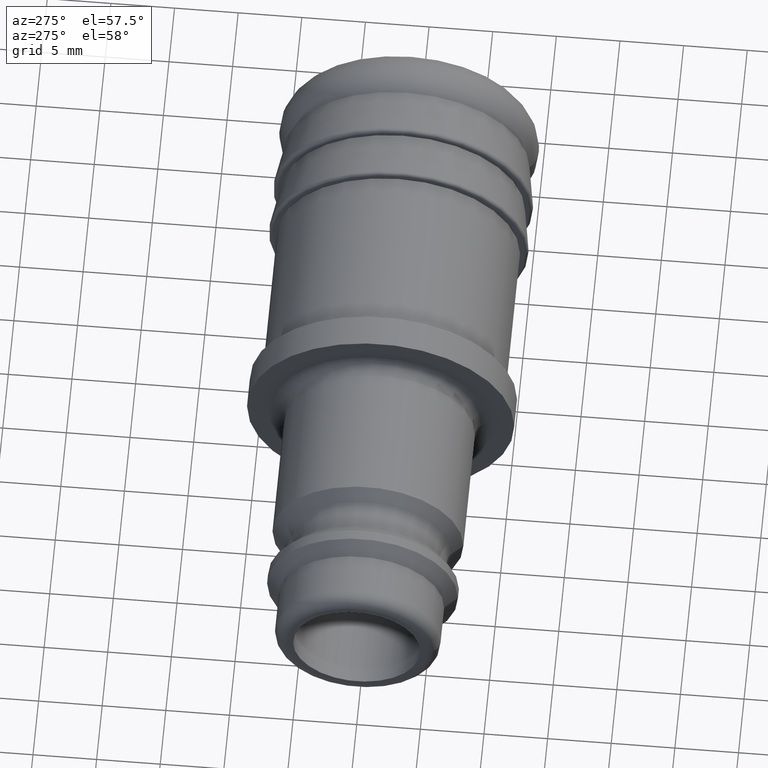
[diagram: clean part render]
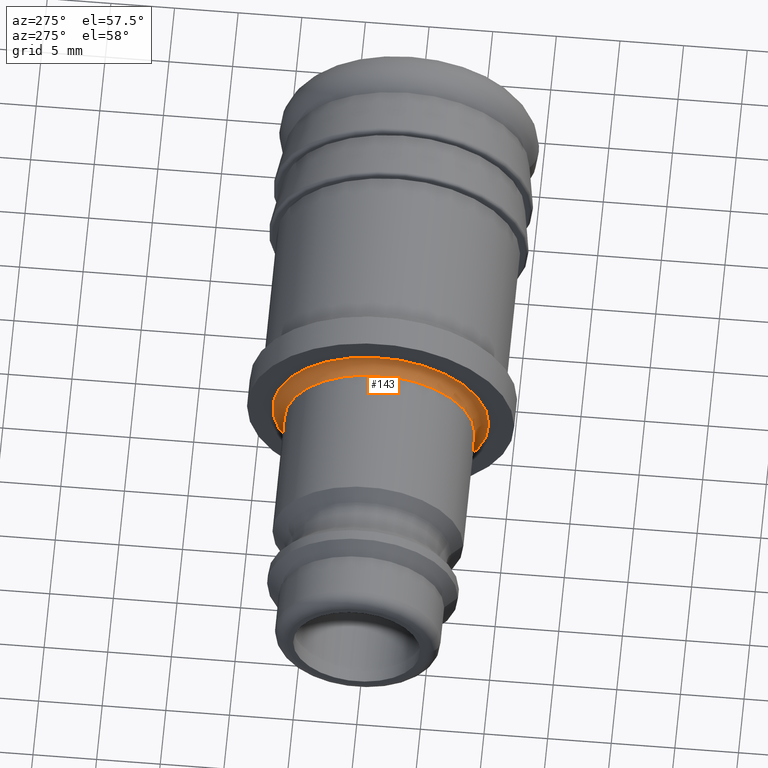
[diagram: same view with one face highlighted and labeled with its STEP entity id]
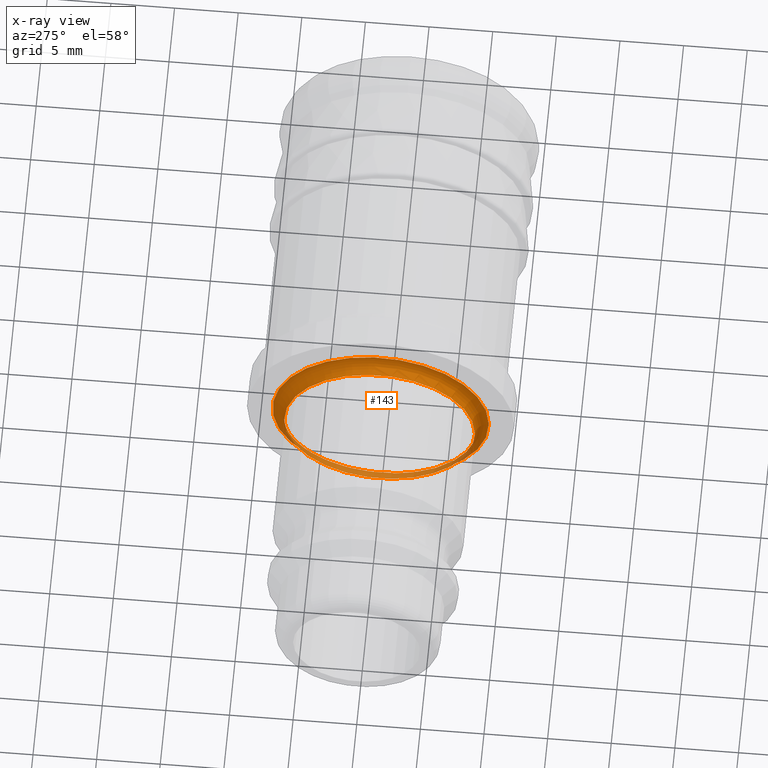
[diagram: x-ray of the same camera — body ghosted, the highlighted face saturated]
A machine part, auxiliary view. The second image highlights one B-rep face of the part: STEP entity #143.
The next image is the same camera in x-ray: the body ghosted, the highlighted face saturated — about 17% of this face is hidden behind the body in this view.
In plain terms, the highlighted toroidal blend (fillet) surface has major radius 8.5 mm and minor (blend) radius 1 mm.
Its self-contained STEP definition (entity closure, byte-faithful):
#116=CARTESIAN_POINT('',(20.499999999999993,0.0,0.0));
#117=DIRECTION('',(-1.0,0.0,0.0));
#118=DIRECTION('',(0.0,0.0,1.0));
#119=AXIS2_PLACEMENT_3D('',#116,#117,#118);
#120=TOROIDAL_SURFACE('',#119,8.499999999999998,1.0);
#121=CARTESIAN_POINT('',(21.499999999999993,-8.499999999999998,0.0));
#122=VERTEX_POINT('',#121);
#123=CARTESIAN_POINT('',(21.499999999999993,0.0,0.0));
#124=DIRECTION('',(-1.0,0.0,0.0));
#125=DIRECTION('',(0.0,1.0,0.0));
#126=AXIS2_PLACEMENT_3D('',#123,#124,#125);
#127=CIRCLE('',#126,8.499999999999998);
#128=EDGE_CURVE('',#122,#122,#127,.T.);
#129=ORIENTED_EDGE('',*,*,#128,.T.);
#130=EDGE_LOOP('',(#129));
#131=FACE_OUTER_BOUND('',#130,.T.);
#132=CARTESIAN_POINT('',(20.499999999999993,-7.499999999999999,-1.836970E-015));
#133=VERTEX_POINT('',#132);
#134=CARTESIAN_POINT('',(20.499999999999993,0.0,0.0));
#135=DIRECTION('',(1.0,0.0,0.0));
#136=DIRECTION('',(0.0,1.0,0.0));
#137=AXIS2_PLACEMENT_3D('',#134,#135,#136);
#138=CIRCLE('',#137,7.499999999999999);
#139=EDGE_CURVE('',#133,#133,#138,.T.);
#140=ORIENTED_EDGE('',*,*,#139,.T.);
#141=EDGE_LOOP('',(#140));
#142=FACE_BOUND('',#141,.T.);
#143=ADVANCED_FACE('',(#131,#142),#120,.F.);